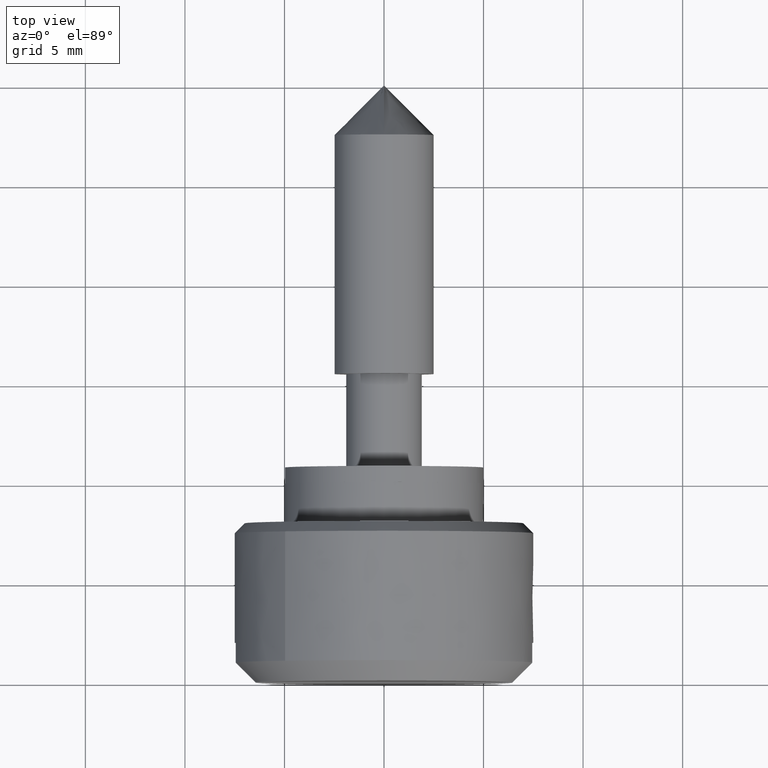
[diagram: clean part render]
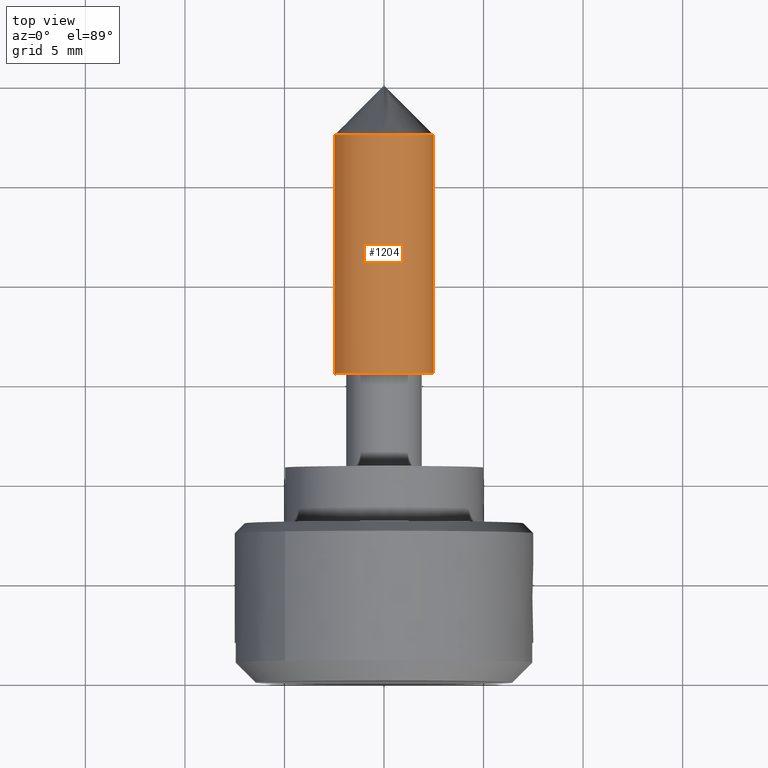
[diagram: same view with one face highlighted and labeled with its STEP entity id]
A machine part, top view. The second image highlights one B-rep face of the part: STEP entity #1204.
In plain terms, the highlighted face is a freeform B-spline surface patch.
Its self-contained STEP definition (entity closure, byte-faithful):
#1041=CARTESIAN_POINT('',(17.500000000000000,2.482523815906038,0.295085586668208));
#1042=VERTEX_POINT('',#1041);
#1060=CARTESIAN_POINT('',(17.500000000000000,-2.495337050234264,-0.152620463003394));
#1061=VERTEX_POINT('',#1060);
#1075=CARTESIAN_POINT('',(5.500000000000001,-2.495337049582929,-0.152620473652755));
#1076=VERTEX_POINT('',#1075);
#1077=CARTESIAN_POINT('',(17.500000000000000,-2.495337050234264,-0.152620463003394));
#1078=CARTESIAN_POINT('',(5.500000000000001,-2.495337049582929,-0.152620473652755));
#1079=QUASI_UNIFORM_CURVE('',1,(#1077,#1078),.UNSPECIFIED.,.F.,.U.);
#1080=EDGE_CURVE('',#1061,#1076,#1079,.T.);
#1097=CARTESIAN_POINT('',(5.500000000000000,2.482523815906038,0.295085586668207));
#1098=VERTEX_POINT('',#1097);
#1114=CARTESIAN_POINT('',(17.500000000000000,2.482523815906038,0.295085586668208));
#1115=CARTESIAN_POINT('',(5.500000000000000,2.482523815906038,0.295085586668207));
#1116=QUASI_UNIFORM_CURVE('',1,(#1114,#1115),.UNSPECIFIED.,.F.,.U.);
#1117=EDGE_CURVE('',#1042,#1098,#1116,.T.);
#1122=CARTESIAN_POINT('',(17.800000000000001,-2.495336996054667,-0.152621348837143));
#1123=CARTESIAN_POINT('',(17.800000000000004,-2.647958344891809,2.342715647217524));
#1124=CARTESIAN_POINT('',(17.800000000000001,-0.152621348837143,2.495336996054667));
#1125=CARTESIAN_POINT('',(17.800000000000008,2.203858727098751,2.639465491831319));
#1126=CARTESIAN_POINT('',(17.800000000000004,2.482523815909166,0.295085586641896));
#1127=CARTESIAN_POINT('',(5.192499999999999,-2.495336996054667,-0.152621348837143));
#1128=CARTESIAN_POINT('',(5.192499999999998,-2.647958344891809,2.342715647217524));
#1129=CARTESIAN_POINT('',(5.192499999999999,-0.152621348837143,2.495336996054667));
#1130=CARTESIAN_POINT('',(5.192499999999998,2.203858727098751,2.639465491831319));
#1131=CARTESIAN_POINT('',(5.192500000000000,2.482523815909166,0.295085586641896));
#1139=(BOUNDED_SURFACE()B_SPLINE_SURFACE(2,1,((#1122,#1127),(#1123,#1128),(#1124,#1129),(#1125,#1130),(#1126,#1131)),.UNSPECIFIED.,.F.,.F.,.U.)B_SPLINE_SURFACE_WITH_KNOTS((3,2,3),(2,2),(0.0,4.142135623730949,8.118585822512660),(0.0,12.607500000000000),.UNSPECIFIED.)GEOMETRIC_REPRESENTATION_ITEM()RATIONAL_B_SPLINE_SURFACE(((1.0,1.0),(0.707106781186548,0.707106781186548),(1.0,1.0),(0.718822509939086,0.718822509939086),(0.977505800795127,0.977505800795127)))REPRESENTATION_ITEM('')SURFACE());
#1140=CARTESIAN_POINT('',(17.499999999999989,0.0,2.499999999999983));
#1141=VERTEX_POINT('',#1140);
#1142=CARTESIAN_POINT('',(17.500000000000000,0.0,2.500000000000000));
#1143=CARTESIAN_POINT('',(17.499999999999993,2.220436314831020,2.499999999999999));
#1144=CARTESIAN_POINT('',(17.500000000000004,2.482523815906038,0.295085586668208));
#1152=(BOUNDED_CURVE()B_SPLINE_CURVE(2,(#1142,#1143,#1144),.UNSPECIFIED.,.F.,.U.)B_SPLINE_CURVE_WITH_KNOTS((3,3),(0.0,0.459124947024123),.UNSPECIFIED.)CURVE()GEOMETRIC_REPRESENTATION_ITEM()RATIONAL_B_SPLINE_CURVE((1.0,0.731050832857097,0.956026754180864))REPRESENTATION_ITEM(''));
#1153=EDGE_CURVE('',#1141,#1042,#1152,.T.);
#1154=ORIENTED_EDGE('',*,*,#1153,.T.);
#1155=ORIENTED_EDGE('',*,*,#1117,.T.);
#1156=CARTESIAN_POINT('',(5.500000000000000,0.0,2.500000000000000));
#1157=VERTEX_POINT('',#1156);
#1158=CARTESIAN_POINT('',(5.500000000000000,0.0,2.500000000000000));
#1159=CARTESIAN_POINT('',(5.500000000000000,2.220436314831020,2.500000000000000));
#1160=CARTESIAN_POINT('',(5.499999999999999,2.482523815906039,0.295085586668207));
#1168=(BOUNDED_CURVE()B_SPLINE_CURVE(2,(#1158,#1159,#1160),.UNSPECIFIED.,.F.,.U.)B_SPLINE_CURVE_WITH_KNOTS((3,3),(0.0,0.229562473512062),.UNSPECIFIED.)CURVE()GEOMETRIC_REPRESENTATION_ITEM()RATIONAL_B_SPLINE_CURVE((1.0,0.731050832857097,0.956026754180864))REPRESENTATION_ITEM(''));
#1169=EDGE_CURVE('',#1157,#1098,#1168,.T.);
#1170=ORIENTED_EDGE('',*,*,#1169,.F.);
#1171=CARTESIAN_POINT('',(5.500000000000001,-2.495337049582929,-0.152620473652755));
#1172=CARTESIAN_POINT('',(5.500000000000001,-2.499999999999999,-0.076381030608181));
#1173=CARTESIAN_POINT('',(5.500000000000000,-2.500000000000000,0.0));
#1174=CARTESIAN_POINT('',(5.500000000000001,-2.500000000000000,2.500000000000000));
#1175=CARTESIAN_POINT('',(5.500000000000000,0.0,2.500000000000000));
#1183=(BOUNDED_CURVE()B_SPLINE_CURVE(2,(#1171,#1172,#1173,#1174,#1175),.UNSPECIFIED.,.F.,.U.)B_SPLINE_CURVE_WITH_KNOTS((3,2,3),(0.739333083275940,0.750000000000000,1.0),.UNSPECIFIED.)CURVE()GEOMETRIC_REPRESENTATION_ITEM()RATIONAL_B_SPLINE_CURVE((0.976072301072180,0.987502929703500,1.0,0.707106781186548,1.0))REPRESENTATION_ITEM(''));
#1184=EDGE_CURVE('',#1076,#1157,#1183,.T.);
#1185=ORIENTED_EDGE('',*,*,#1184,.F.);
#1186=ORIENTED_EDGE('',*,*,#1080,.F.);
#1187=CARTESIAN_POINT('',(17.500000000000004,-2.495337050234264,-0.152620463003394));
#1188=CARTESIAN_POINT('',(17.500000000000000,-2.500000000000000,-0.076381019928961));
#1189=CARTESIAN_POINT('',(17.500000000000000,-2.500000000000000,0.0));
#1190=CARTESIAN_POINT('',(17.499999999999996,-2.500000000000000,2.500000000000000));
#1191=CARTESIAN_POINT('',(17.500000000000000,0.0,2.500000000000000));
#1199=(BOUNDED_CURVE()B_SPLINE_CURVE(2,(#1187,#1188,#1189,#1190,#1191),.UNSPECIFIED.,.F.,.U.)B_SPLINE_CURVE_WITH_KNOTS((3,2,3),(0.478666169497395,0.500000000000000,1.0),.UNSPECIFIED.)CURVE()GEOMETRIC_REPRESENTATION_ITEM()RATIONAL_B_SPLINE_CURVE((0.976072304228583,0.987502931428943,1.0,0.707106781186548,1.0))REPRESENTATION_ITEM(''));
#1200=EDGE_CURVE('',#1061,#1141,#1199,.T.);
#1201=ORIENTED_EDGE('',*,*,#1200,.T.);
#1202=EDGE_LOOP('',(#1154,#1155,#1170,#1185,#1186,#1201));
#1203=FACE_OUTER_BOUND('',#1202,.T.);
#1204=ADVANCED_FACE('',(#1203),#1139,.T.);